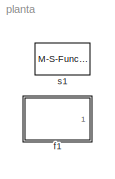
MODEL planta
KIND model
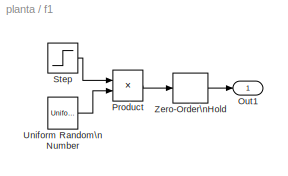
BLOCK [SubSystem] f1
  Ports = [0, 1]
  RequestExecContextInheritance = off
  SID = 1
BLOCK [Outport] f1/Out1
  SID = 6
BLOCK [Product] f1/Product
  Ports = [2, 1]
  RndMeth = Zero
  SID = 2
BLOCK [Step] f1/Step
  SID = 3
  SampleTime = 0
  Time = 0
BLOCK [UniformRandomNumber] f1/Uniform Random\nNumber
  Maximum = S
  Minimum = L
  SID = 4
  SampleTime = 0
BLOCK [ZeroOrderHold] f1/Zero-Order\nHold
  SID = 5
  SampleTime = T
BLOCK [M-S-Function] s1
  FunctionName = whoknows
  Parameters = L, P1, P2, T, R
  Ports = [1, 1]
  SID = 7
LINE f1/Product:1 -> f1/Zero-Order\nHold:1
LINE f1/Step:1 -> f1/Product:1
LINE f1/Uniform Random\nNumber:1 -> f1/Product:2
LINE f1/Zero-Order\nHold:1 -> f1/Out1:1
